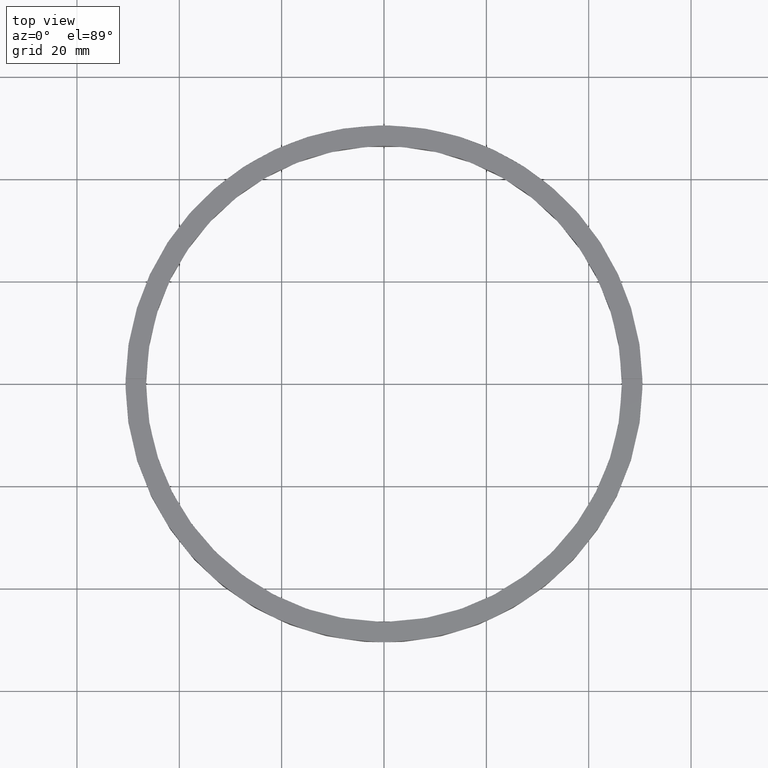
[diagram: clean part render]
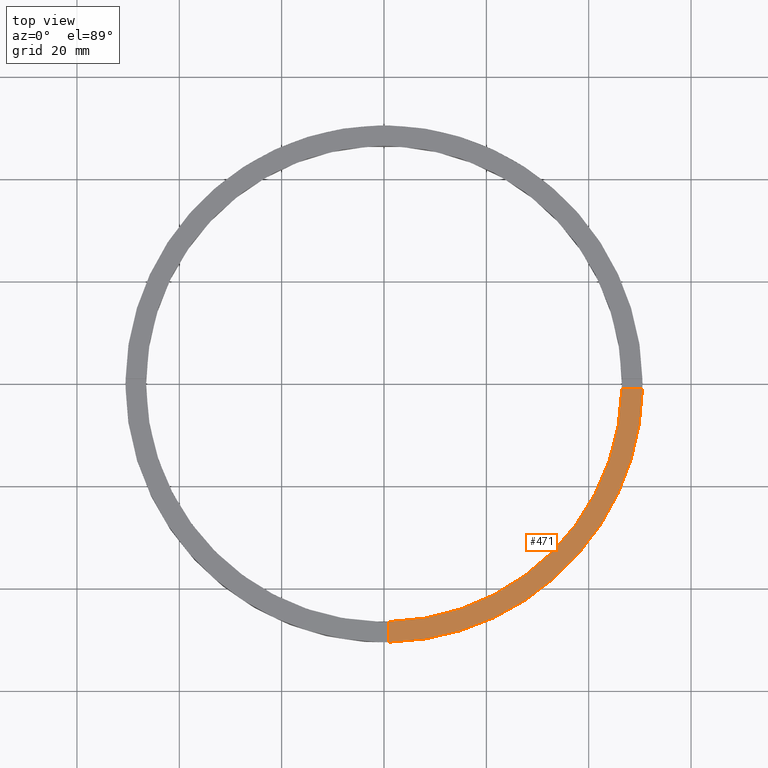
[diagram: same view with one face highlighted and labeled with its STEP entity id]
A machine part, top view. The second image highlights one B-rep face of the part: STEP entity #471.
In plain terms, the highlighted planar face has unit normal (0, 0, 1).
Its self-contained STEP definition (entity closure, byte-faithful):
#9 = AXIS2_PLACEMENT_3D ( 'NONE', #67, #606, #676 ) ;
#16 = CARTESIAN_POINT ( 'NONE',  ( 40.49999999999999289, -1.000000000000155653, 5.000000000000000000 ) ) ;
#27 = DIRECTION ( 'NONE',  ( 1.000000000000000000, 0.000000000000000000, -0.000000000000000000 ) ) ;
#30 = CARTESIAN_POINT ( 'NONE',  ( 0.9999999999998430145, -46.48924606831132422, 5.000000000000000000 ) ) ;
#67 = CARTESIAN_POINT ( 'NONE',  ( 0.000000000000000000, 0.000000000000000000, 5.000000000000000000 ) ) ;
#77 = VERTEX_POINT ( 'NONE', #739 ) ;
#110 = ORIENTED_EDGE ( 'NONE', *, *, #140, .F. ) ;
#127 = ORIENTED_EDGE ( 'NONE', *, *, #263, .F. ) ;
#134 = ORIENTED_EDGE ( 'NONE', *, *, #168, .F. ) ;
#140 = EDGE_CURVE ( 'NONE', #599, #581, #745, .T. ) ;
#157 = CARTESIAN_POINT ( 'NONE',  ( 50.49009803912050387, -1.000000000000154987, 5.000000000000000000 ) ) ;
#168 = EDGE_CURVE ( 'NONE', #77, #454, #752, .T. ) ;
#263 = EDGE_CURVE ( 'NONE', #581, #77, #721, .T. ) ;
#284 = CARTESIAN_POINT ( 'NONE',  ( 0.9999999999998434586, -50.49009803912051098, 5.000000000000000000 ) ) ;
#291 = PLANE ( 'NONE',  #443 ) ;
#303 = DIRECTION ( 'NONE',  ( 0.000000000000000000, 0.000000000000000000, 1.000000000000000000 ) ) ;
#325 = CARTESIAN_POINT ( 'NONE',  ( 0.000000000000000000, 0.000000000000000000, 5.000000000000000000 ) ) ;
#370 = CARTESIAN_POINT ( 'NONE',  ( 0.000000000000000000, 0.000000000000000000, 5.000000000000000000 ) ) ;
#386 = DIRECTION ( 'NONE',  ( 1.000000000000000000, 6.505213034913025371E-17, 0.000000000000000000 ) ) ;
#397 = DIRECTION ( 'NONE',  ( -1.301042606982605074E-16, 1.000000000000000000, -0.000000000000000000 ) ) ;
#409 = AXIS2_PLACEMENT_3D ( 'NONE', #370, #303, #663 ) ;
#443 = AXIS2_PLACEMENT_3D ( 'NONE', #325, #776, #27 ) ;
#454 = VERTEX_POINT ( 'NONE', #157 ) ;
#471 = ADVANCED_FACE ( 'NONE', ( #765 ), #291, .T. ) ;
#581 = VERTEX_POINT ( 'NONE', #30 ) ;
#599 = VERTEX_POINT ( 'NONE', #284 ) ;
#606 = DIRECTION ( 'NONE',  ( 0.000000000000000000, 0.000000000000000000, 1.000000000000000000 ) ) ;
#611 = ORIENTED_EDGE ( 'NONE', *, *, #777, .T. ) ;
#663 = DIRECTION ( 'NONE',  ( 1.000000000000000000, 0.000000000000000000, 0.000000000000000000 ) ) ;
#676 = DIRECTION ( 'NONE',  ( 1.000000000000000000, 0.000000000000000000, 0.000000000000000000 ) ) ;
#679 = CIRCLE ( 'NONE', #409, 50.50000000000000000 ) ;
#716 = EDGE_LOOP ( 'NONE', ( #134, #127, #110, #611 ) ) ;
#721 = CIRCLE ( 'NONE', #9, 46.50000000000000000 ) ;
#735 = VECTOR ( 'NONE', #397, 1000.000000000000000 ) ;
#736 = VECTOR ( 'NONE', #386, 1000.000000000000000 ) ;
#739 = CARTESIAN_POINT ( 'NONE',  ( 46.48924606831132422, -1.000000000000155209, 5.000000000000000000 ) ) ;
#744 = CARTESIAN_POINT ( 'NONE',  ( 0.9999999999998421263, -40.50000000000018474, 5.000000000000000000 ) ) ;
#745 = LINE ( 'NONE', #744, #735 ) ;
#752 = LINE ( 'NONE', #16, #736 ) ;
#765 = FACE_OUTER_BOUND ( 'NONE', #716, .T. ) ;
#776 = DIRECTION ( 'NONE',  ( 0.000000000000000000, 0.000000000000000000, 1.000000000000000000 ) ) ;
#777 = EDGE_CURVE ( 'NONE', #599, #454, #679, .T. ) ;